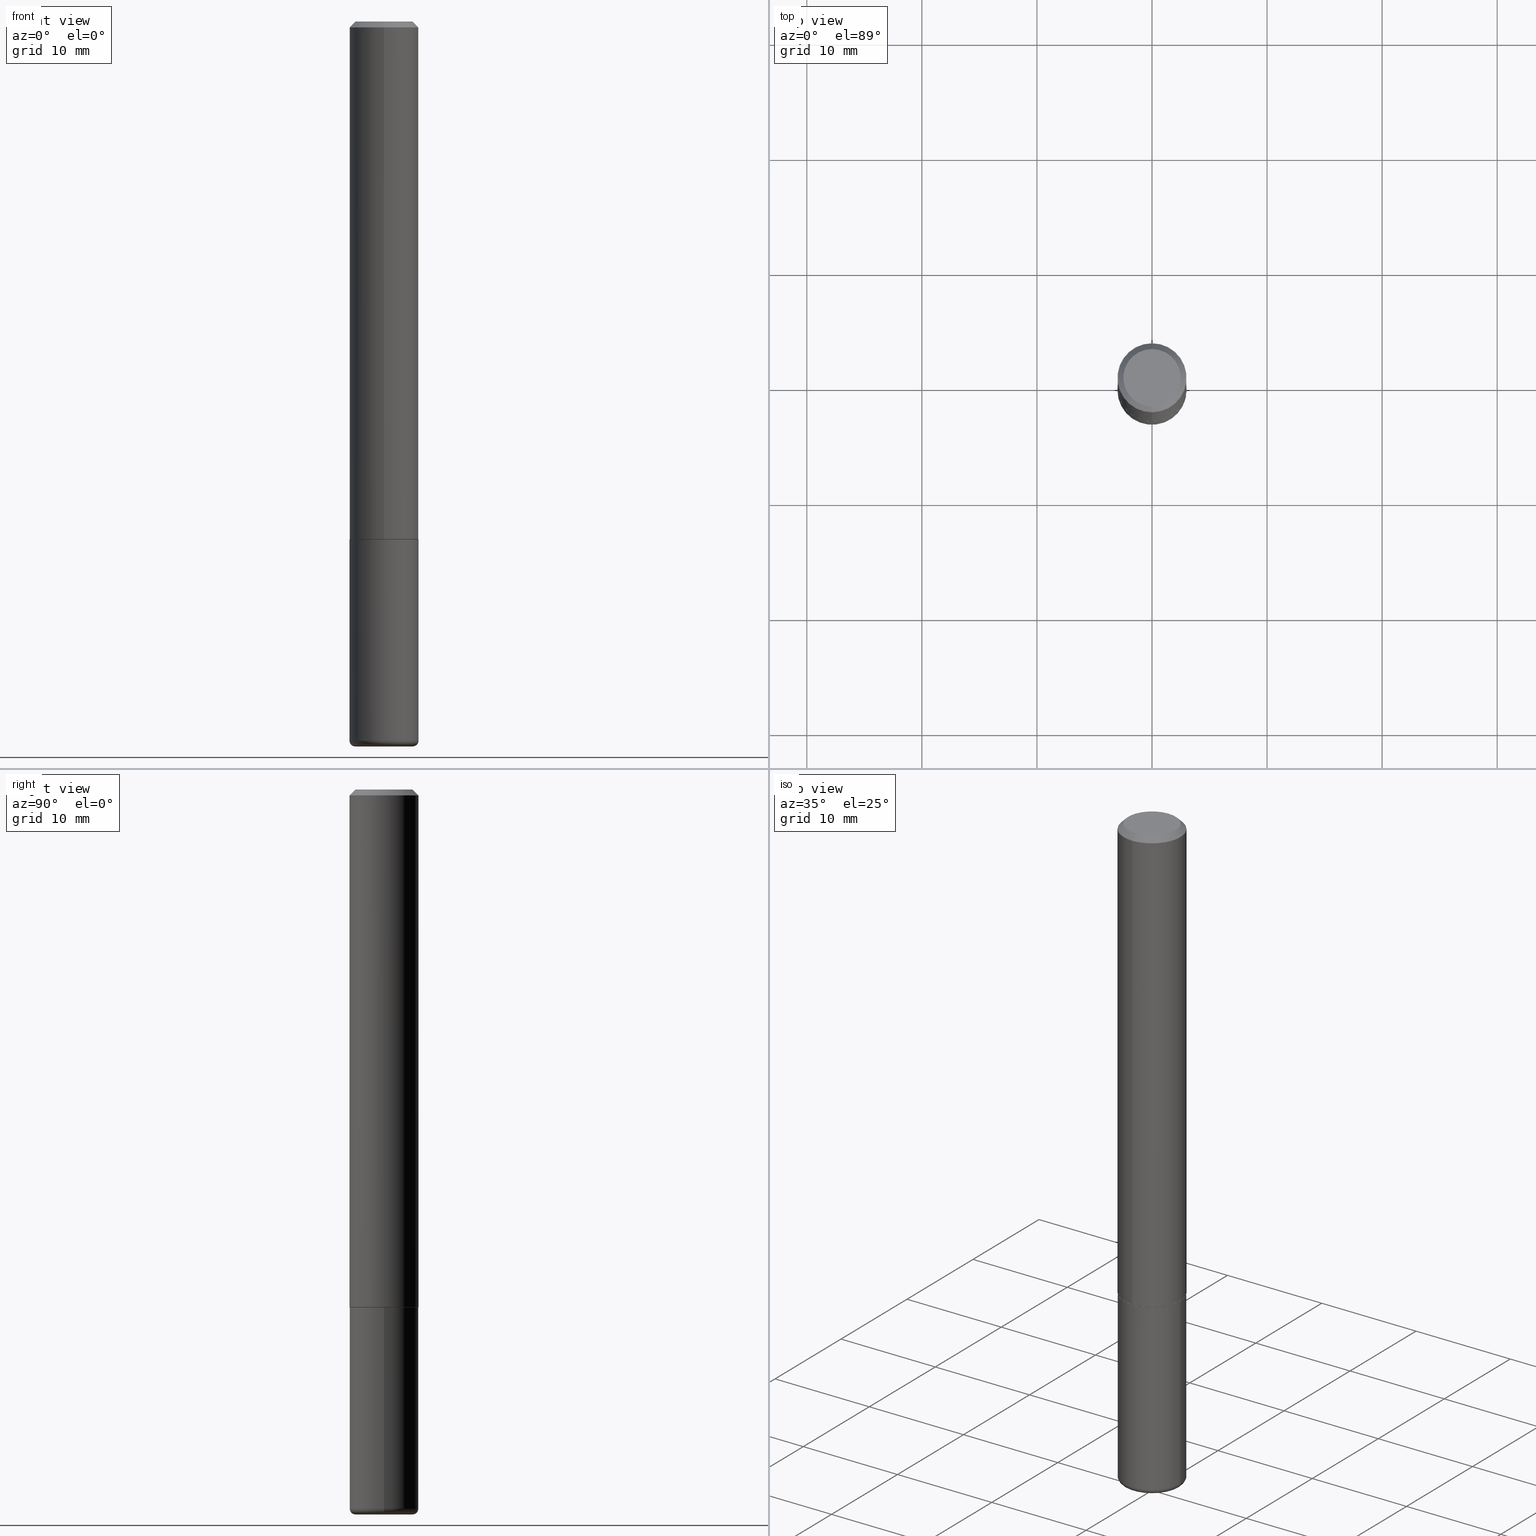
[diagram: canonical four-view strip — front | top / right | iso, engineering-drawing reading convention]
A machine part, canonical four-view strip (front | top / right | iso — engineering-drawing reading convention). The complete STEP part file that produces these views, byte-faithful:
ISO-10303-21;
HEADER;
FILE_DESCRIPTION (( 'STEP AP203' ),
    '1' );
FILE_NAME ('47486.STEP',
    '2024-03-06T02:24:34',
    ( '' ),
    ( '' ),
    'SwSTEP 2.0',
    'SolidWorks 2023',
    '' );
FILE_SCHEMA (( 'CONFIG_CONTROL_DESIGN' ));
ENDSEC;

DATA;
#1 = MANIFOLD_SOLID_BREP ( 'Body-Move/Copy2[1]', #125 ) ;
#3 = APPROVAL_DATE_TIME ( #34, #260 ) ;
#2 = APPROVAL ( #294, 'UNSPECIFIED' ) ;
#4 = CARTESIAN_POINT ( 'NONE',  ( 4.886477535132384121E-31, -6.989349762142808870E-17, -0.02000000000000004205 ) ) ;
#5 = FACE_OUTER_BOUND ( 'NONE', #79, .T. ) ;
#6 = CARTESIAN_POINT ( 'NONE',  ( -0.1180999999999999966, 8.391509709326782957E-16, -5.809262341591043784E-30 ) ) ;
#7 = EDGE_CURVE ( 'NONE', #156, #144, #296, .T. ) ;
#8 = CIRCLE ( 'NONE', #268, 0.01970000000000002999 ) ;
#9 = APPLICATION_CONTEXT ( 'configuration controlled 3d designs of mechanical parts and assemblies' ) ;
#10 = PERSON_AND_ORGANIZATION_ROLE ( 'classification_officer' ) ;
#11 = AXIS2_PLACEMENT_3D ( 'NONE', #191, #280, #414 ) ;
#12 = CARTESIAN_POINT ( 'NONE',  ( 0.000000000000000000, 0.000000000000000000, 0.000000000000000000 ) ) ;
#13 = ORIENTED_EDGE ( 'NONE', *, *, #327, .T. ) ;
#14 = CARTESIAN_POINT ( 'NONE',  ( -8.102248135368172434E-16, -0.1181000000000000660, -0.01999999999999962919 ) ) ;
#15 = EDGE_CURVE ( 'NONE', #184, #54, #219, .T. ) ;
#16 = ORIENTED_EDGE ( 'NONE', *, *, #96, .T. ) ;
#17 = CARTESIAN_POINT ( 'NONE',  ( -8.102248135368172434E-16, -0.1181000000000000660, -0.01999999999999962919 ) ) ;
#18 = AXIS2_PLACEMENT_3D ( 'NONE', #12, #223, #247 ) ;
#19 = AXIS2_PLACEMENT_3D ( 'NONE', #44, #308, #175 ) ;
#20 = EDGE_LOOP ( 'NONE', ( #150, #159 ) ) ;
#21 = DIRECTION ( 'NONE',  ( -6.982962677686265922E-15, -1.000000000000000000, 4.626330217890360659E-15 ) ) ;
#22 = CARTESIAN_POINT ( 'NONE',  ( -0.1181000000000000105, -7.751988011424766742E-15, -2.460600000000000342 ) ) ;
#23 = FACE_OUTER_BOUND ( 'NONE', #148, .T. ) ;
#24 = ORIENTED_EDGE ( 'NONE', *, *, #374, .T. ) ;
#25 = APPLICATION_PROTOCOL_DEFINITION ( 'international standard', 'config_control_design', 1994, #116 ) ;
#26 = LINE ( 'NONE', #212, #98 ) ;
#27 = CONICAL_SURFACE ( 'NONE', #180, 0.1180999999999999966, 0.7853981633974469467 ) ;
#28 = CIRCLE ( 'NONE', #396, 0.1170999999999999958 ) ;
#29 = ORIENTED_EDGE ( 'NONE', *, *, #322, .F. ) ;
#30 = DIRECTION ( 'NONE',  ( -2.443238767566187138E-29, 3.494674881071397310E-15, 1.000000000000000000 ) ) ;
#31 = PERSON_AND_ORGANIZATION_ROLE ( 'design_owner' ) ;
#32 = CARTESIAN_POINT ( 'NONE',  ( 0.1180999999999999966, -8.246878922347480654E-16, 5.758764772215000440E-30 ) ) ;
#33 = AXIS2_PLACEMENT_3D ( 'NONE', #172, #149, #377 ) ;
#34 = DATE_AND_TIME ( #283, #246 ) ;
#35 = CARTESIAN_POINT ( 'NONE',  ( -8.246878922347488542E-16, -0.1181000000000001215, 4.127211034545323724E-16 ) ) ;
#36 = EDGE_CURVE ( 'NONE', #184, #156, #26, .T. ) ;
#37 = CARTESIAN_POINT ( 'NONE',  ( 6.850286386810209760E-16, 0.09809999999999975684, -2.124813316387448711E-16 ) ) ;
#38 = APPROVAL_DATE_TIME ( #225, #2 ) ;
#39 = ADVANCED_FACE ( 'NONE', ( #309 ), #291, .T. ) ;
#40 = AXIS2_PLACEMENT_3D ( 'NONE', #350, #314, #58 ) ;
#41 = EDGE_CURVE ( 'NONE', #156, #371, #244, .T. ) ;
#42 = CARTESIAN_POINT ( 'NONE',  ( 8.391509709327014685E-16, 0.1180999999999940708, -1.770600000000000840 ) ) ;
#43 = ORIENTED_EDGE ( 'NONE', *, *, #129, .F. ) ;
#45 = EDGE_CURVE ( 'NONE', #83, #263, #351, .T. ) ;
#44 = CARTESIAN_POINT ( 'NONE',  ( 4.332392537037588763E-29, -6.185508339894517569E-15, -1.771600000000000286 ) ) ;
#46 = VECTOR ( 'NONE', #402, 39.37007874015748143 ) ;
#47 = DIRECTION ( 'NONE',  ( -6.982962677686265922E-15, -1.000000000000000000, 3.494674881071397705E-15 ) ) ;
#48 = VERTEX_POINT ( 'NONE', #22 ) ;
#49 = DIRECTION ( 'NONE',  ( -6.982962677686265922E-15, -1.000000000000000000, 3.505890868245046092E-15 ) ) ;
#50 = FACE_OUTER_BOUND ( 'NONE', #270, .T. ) ;
#51 = AXIS2_PLACEMENT_3D ( 'NONE', #254, #199, #103 ) ;
#52 = AXIS2_PLACEMENT_3D ( 'NONE', #107, #232, #21 ) ;
#53 = ORIENTED_EDGE ( 'NONE', *, *, #401, .F. ) ;
#54 = VERTEX_POINT ( 'NONE', #95 ) ;
#55 = CALENDAR_DATE ( 2024, 5, 3 ) ;
#56 = EDGE_LOOP ( 'NONE', ( #113, #123, #173, #406 ) ) ;
#57 = EDGE_CURVE ( 'NONE', #208, #189, #262, .T. ) ;
#58 = DIRECTION ( 'NONE',  ( -6.982962677686265922E-15, -1.000000000000000000, 2.332918867347791121E-15 ) ) ;
#59 = VECTOR ( 'NONE', #65, 39.37007874015748143 ) ;
#60 = DATE_AND_TIME ( #55, #164 ) ;
#61 = CC_DESIGN_PERSON_AND_ORGANIZATION_ASSIGNMENT ( #384, #153, ( #329 ) ) ;
#62 = DIRECTION ( 'NONE',  ( -2.445468806185136597E-29, 3.491481338843145583E-15, 1.000000000000000000 ) ) ;
#63 = CARTESIAN_POINT ( 'NONE',  ( 0.09840000000000000135, -9.278262509841773199E-15, -2.460600000000000342 ) ) ;
#64 = DIRECTION ( 'NONE',  ( 6.982962677686265922E-15, 1.000000000000000000, -3.505890868245046092E-15 ) ) ;
#65 = DIRECTION ( 'NONE',  ( -2.445468806185136877E-29, 3.491481338843145188E-15, 1.000000000000000000 ) ) ;
#66 = DATE_AND_TIME ( #100, #127 ) ;
#67 = AXIS2_PLACEMENT_3D ( 'NONE', #375, #310, #214 ) ;
#68 = CC_DESIGN_APPROVAL ( #260, ( #329 ) ) ;
#69 = FACE_OUTER_BOUND ( 'NONE', #152, .T. ) ;
#70 = ORIENTED_EDGE ( 'NONE', *, *, #171, .F. ) ;
#71 = FACE_OUTER_BOUND ( 'NONE', #186, .T. ) ;
#72 = ADVANCED_FACE ( 'NONE', ( #71 ), #249, .T. ) ;
#73 = AXIS2_PLACEMENT_3D ( 'NONE', #77, #151, #373 ) ;
#74 = CARTESIAN_POINT ( 'NONE',  ( 0.1181000000000000105, -9.415826874592192413E-15, -2.460600000000000342 ) ) ;
#75 = AXIS2_PLACEMENT_3D ( 'NONE', #157, #190, #320 ) ;
#76 = CARTESIAN_POINT ( 'NONE',  ( 4.328441800620257960E-29, -6.191166019306087880E-15, -1.771600000000000286 ) ) ;
#77 = CARTESIAN_POINT ( 'NONE',  ( 6.065496279980994755E-29, -8.659921164732655335E-15, -2.480300000000000171 ) ) ;
#78 = ADVANCED_FACE ( 'NONE', ( #397 ), #132, .T. ) ;
#79 = EDGE_LOOP ( 'NONE', ( #279, #29, #378, #202 ) ) ;
#80 = CARTESIAN_POINT ( 'NONE',  ( 0.1180999999999999966, -7.010196232129265043E-15, -1.771600000000000286 ) ) ;
#81 = AXIS2_PLACEMENT_3D ( 'NONE', #274, #114, #399 ) ;
#82 = AXIS2_PLACEMENT_3D ( 'NONE', #332, #181, #47 ) ;
#83 = VERTEX_POINT ( 'NONE', #126 ) ;
#84 = CALENDAR_DATE ( 2024, 5, 3 ) ;
#85 = VERTEX_POINT ( 'NONE', #370 ) ;
#86 = ADVANCED_FACE ( 'NONE', ( #97 ), #390, .T. ) ;
#87 = PERSON_AND_ORGANIZATION_ROLE ( 'design_supplier' ) ;
#88 = ORIENTED_EDGE ( 'NONE', *, *, #112, .F. ) ;
#89 = PERSON_AND_ORGANIZATION_ROLE ( 'creator' ) ;
#90 = CIRCLE ( 'NONE', #305, 0.1180999999999999966 ) ;
#91 = CARTESIAN_POINT ( 'NONE',  ( 8.391509709326790846E-16, 0.1181000000000001215, -4.127211034545323724E-16 ) ) ;
#92 = AXIS2_PLACEMENT_3D ( 'NONE', #405, #264, #111 ) ;
#93 = CARTESIAN_POINT ( 'NONE',  ( -8.177049295570184665E-16, -0.1171000000000061991, -1.771600000000000064 ) ) ;
#94 = DIRECTION ( 'NONE',  ( 4.937700262164540942E-15, 0.7071067811865441310, -0.7071067811865509034 ) ) ;
#95 = CARTESIAN_POINT ( 'NONE',  ( -8.177049295570184665E-16, -0.1171000000000061991, -1.771600000000000064 ) ) ;
#96 = EDGE_CURVE ( 'NONE', #275, #371, #145, .T. ) ;
#97 = FACE_OUTER_BOUND ( 'NONE', #56, .T. ) ;
#98 = VECTOR ( 'NONE', #238, 39.37007874015748143 ) ;
#99 =( GEOMETRIC_REPRESENTATION_CONTEXT ( 3 ) GLOBAL_UNCERTAINTY_ASSIGNED_CONTEXT ( ( #194 ) ) GLOBAL_UNIT_ASSIGNED_CONTEXT ( ( #281, #278, #316 ) ) REPRESENTATION_CONTEXT ( 'NONE', 'WORKASPACE' ) );
#100 = CALENDAR_DATE ( 2024, 5, 3 ) ;
#101 = EDGE_CURVE ( 'NONE', #54, #144, #139, .T. ) ;
#102 = VECTOR ( 'NONE', #30, 39.37007874015748143 ) ;
#103 = DIRECTION ( 'NONE',  ( -1.000000000000000000, 6.982962677686265922E-15, -4.876176775795935793E-29 ) ) ;
#104 = VERTEX_POINT ( 'NONE', #288 ) ;
#105 = DIRECTION ( 'NONE',  ( -4.937700262164969294E-15, -0.7071067811866054154, 0.7071067811864896191 ) ) ;
#106 = ORIENTED_EDGE ( 'NONE', *, *, #360, .T. ) ;
#107 = CARTESIAN_POINT ( 'NONE',  ( 4.325998561852691348E-29, -6.187671344425017014E-15, -1.770600000000000174 ) ) ;
#108 = AXIS2_PLACEMENT_3D ( 'NONE', #182, #413, #216 ) ;
#109 = DIRECTION ( 'NONE',  ( 1.000000000000000000, -6.982962677686273021E-15, 0.000000000000000000 ) ) ;
#110 = PRODUCT_DEFINITION_FORMATION_WITH_SPECIFIED_SOURCE ( 'ANY', '', #158, .NOT_KNOWN. ) ;
#112 = EDGE_CURVE ( 'NONE', #83, #208, #284, .T. ) ;
#111 = DIRECTION ( 'NONE',  ( 1.000000000000000000, -6.982962677686265133E-15, 0.000000000000000000 ) ) ;
#113 = ORIENTED_EDGE ( 'NONE', *, *, #41, .F. ) ;
#114 = DIRECTION ( 'NONE',  ( -2.443238767566187138E-29, 3.494674881071396916E-15, 1.000000000000000000 ) ) ;
#115 = ORIENTED_EDGE ( 'NONE', *, *, #134, .F. ) ;
#116 = APPLICATION_CONTEXT ( 'configuration controlled 3d designs of mechanical parts and assemblies' ) ;
#117 = CARTESIAN_POINT ( 'NONE',  ( -7.416198335591014190E-16, -0.09809999999999975684, 6.035201542218197439E-16 ) ) ;
#118 = EDGE_LOOP ( 'NONE', ( #227, #301, #53, #409 ) ) ;
#119 = ADVANCED_FACE ( 'NONE', ( #319 ), #326, .F. ) ;
#120 = COORDINATED_UNIVERSAL_TIME_OFFSET ( 5, 0, .BEHIND. ) ;
#121 = ORIENTED_EDGE ( 'NONE', *, *, #401, .T. ) ;
#122 = APPROVAL_ROLE ( '' ) ;
#123 = ORIENTED_EDGE ( 'NONE', *, *, #7, .T. ) ;
#124 = DIRECTION ( 'NONE',  ( 1.000000000000000000, -6.982962677686270655E-15, 4.883557194083114583E-29 ) ) ;
#125 = CLOSED_SHELL ( 'NONE', ( #140, #339, #136, #78, #415, #72 ) ) ;
#126 = CARTESIAN_POINT ( 'NONE',  ( 0.09840000000000000135, -9.347044692216982806E-15, -2.480300000000000171 ) ) ;
#127 = LOCAL_TIME ( 21, 24, 34.00000000000000000, #135 ) ;
#128 = DATE_TIME_ROLE ( 'creation_date' ) ;
#129 = EDGE_CURVE ( 'NONE', #144, #275, #230, .T. ) ;
#130 = DIRECTION ( 'NONE',  ( -2.443238767566187138E-29, 3.494674881071396916E-15, 1.000000000000000000 ) ) ;
#131 = CARTESIAN_POINT ( 'NONE',  ( 6.017320544499148018E-29, -8.591138982357444151E-15, -2.460600000000000342 ) ) ;
#132 = CYLINDRICAL_SURFACE ( 'NONE', #18, 0.1180999999999999966 ) ;
#133 = CIRCLE ( 'NONE', #403, 0.09809999999999975684 ) ;
#134 = EDGE_CURVE ( 'NONE', #48, #104, #388, .T. ) ;
#135 = COORDINATED_UNIVERSAL_TIME_OFFSET ( 5, 0, .BEHIND. ) ;
#136 = ADVANCED_FACE ( 'NONE', ( #282 ), #368, .F. ) ;
#137 = CIRCLE ( 'NONE', #82, 0.09809999999999975684 ) ;
#138 = PERSON_AND_ORGANIZATION ( #311, #334 ) ;
#139 = LINE ( 'NONE', #93, #333 ) ;
#140 = ADVANCED_FACE ( 'NONE', ( #391 ), #418, .T. ) ;
#141 = ORIENTED_EDGE ( 'NONE', *, *, #363, .F. ) ;
#142 = DIRECTION ( 'NONE',  ( -6.982962677686265922E-15, -1.000000000000000000, 2.332918867347791121E-15 ) ) ;
#143 = DIRECTION ( 'NONE',  ( 1.000000000000000000, -6.982962677686270655E-15, 4.883557194083114583E-29 ) ) ;
#144 = VERTEX_POINT ( 'NONE', #228 ) ;
#145 = CIRCLE ( 'NONE', #197, 0.1180999999999999966 ) ;
#146 = CIRCLE ( 'NONE', #19, 0.1180999999999999966 ) ;
#147 = CYLINDRICAL_SURFACE ( 'NONE', #67, 0.1181000000000001215 ) ;
#148 = EDGE_LOOP ( 'NONE', ( #318, #404, #231, #210 ) ) ;
#149 = DIRECTION ( 'NONE',  ( 2.443238767566187138E-29, -3.494674881071396916E-15, -1.000000000000000000 ) ) ;
#150 = ORIENTED_EDGE ( 'NONE', *, *, #322, .T. ) ;
#151 = DIRECTION ( 'NONE',  ( -2.445468806185136597E-29, 3.491481338843145583E-15, 1.000000000000000000 ) ) ;
#152 = EDGE_LOOP ( 'NONE', ( #170, #106, #16, #217 ) ) ;
#153 = PERSON_AND_ORGANIZATION_ROLE ( 'creator' ) ;
#154 = APPROVAL_PERSON_ORGANIZATION ( #248, #317, #313 ) ;
#155 = ADVANCED_FACE ( 'NONE', ( #5 ), #27, .T. ) ;
#156 = VERTEX_POINT ( 'NONE', #42 ) ;
#157 = CARTESIAN_POINT ( 'NONE',  ( 0.000000000000000000, 0.000000000000000000, 0.000000000000000000 ) ) ;
#158 = PRODUCT ( '47486', '47486', '', ( #250 ) ) ;
#159 = ORIENTED_EDGE ( 'NONE', *, *, #242, .T. ) ;
#160 = APPROVAL_STATUS ( 'not_yet_approved' ) ;
#161 = DIRECTION ( 'NONE',  ( -2.445468806185136877E-29, 3.491481338843145188E-15, 1.000000000000000000 ) ) ;
#162 = APPROVAL_STATUS ( 'not_yet_approved' ) ;
#163 = DIRECTION ( 'NONE',  ( -6.982962677686265922E-15, -1.000000000000000000, 3.494674881071396522E-15 ) ) ;
#164 = LOCAL_TIME ( 21, 24, 34.00000000000000000, #120 ) ;
#165 = DIRECTION ( 'NONE',  ( 2.438088387897960049E-29, -3.491481338843145188E-15, -1.000000000000000000 ) ) ;
#166 = DIRECTION ( 'NONE',  ( 2.443238767566186578E-29, -3.494674881071397310E-15, -1.000000000000000000 ) ) ;
#167 = AXIS2_PLACEMENT_3D ( 'NONE', #63, #222, #221 ) ;
#168 = SECURITY_CLASSIFICATION ( '', '', #349 ) ;
#169 = CC_DESIGN_APPROVAL ( #317, ( #110 ) ) ;
#170 = ORIENTED_EDGE ( 'NONE', *, *, #242, .F. ) ;
#171 = EDGE_CURVE ( 'NONE', #48, #208, #365, .T. ) ;
#172 = CARTESIAN_POINT ( 'NONE',  ( 4.886477535132384121E-31, -6.989349762142808870E-17, -0.02000000000000004205 ) ) ;
#173 = ORIENTED_EDGE ( 'NONE', *, *, #129, .T. ) ;
#174 = APPROVAL_PERSON_ORGANIZATION ( #138, #2, #252 ) ;
#175 = DIRECTION ( 'NONE',  ( 1.000000000000000000, -6.982962677686265133E-15, 0.000000000000000000 ) ) ;
#176 = DIRECTION ( 'NONE',  ( -2.443238767566187138E-29, 3.494674881071396916E-15, 1.000000000000000000 ) ) ;
#177 = ADVANCED_FACE ( 'NONE', ( #69 ), #213, .T. ) ;
#178 = ORIENTED_EDGE ( 'NONE', *, *, #41, .T. ) ;
#179 = CARTESIAN_POINT ( 'NONE',  ( 4.328441800620257960E-29, -6.191166019306087880E-15, -1.771600000000000286 ) ) ;
#180 = AXIS2_PLACEMENT_3D ( 'NONE', #331, #395, #64 ) ;
#181 = DIRECTION ( 'NONE',  ( -2.443238767566187138E-29, 3.494674881071396916E-15, 1.000000000000000000 ) ) ;
#182 = CARTESIAN_POINT ( 'NONE',  ( 4.325998561852691348E-29, -6.187671344425017014E-15, -1.770600000000000174 ) ) ;
#183 = PLANE ( 'NONE',  #324 ) ;
#184 = VERTEX_POINT ( 'NONE', #235 ) ;
#185 = APPROVAL_DATE_TIME ( #60, #317 ) ;
#186 = EDGE_LOOP ( 'NONE', ( #330, #411 ) ) ;
#187 = LENGTH_MEASURE_WITH_UNIT ( LENGTH_MEASURE( 0.02539999999999999897 ), #358 );
#188 = VECTOR ( 'NONE', #355, 39.37007874015748143 ) ;
#189 = VERTEX_POINT ( 'NONE', #80 ) ;
#190 = DIRECTION ( 'NONE',  ( 0.000000000000000000, 0.000000000000000000, 1.000000000000000000 ) ) ;
#191 = CARTESIAN_POINT ( 'NONE',  ( 4.328441800620257960E-29, -6.191166019306087880E-15, -1.771600000000000286 ) ) ;
#192 = ADVANCED_FACE ( 'NONE', ( #372 ), #147, .T. ) ;
#193 = DIRECTION ( 'NONE',  ( 1.000000000000000000, -6.982962677686266711E-15, 4.876176775795936353E-29 ) ) ;
#194 = UNCERTAINTY_MEASURE_WITH_UNIT (LENGTH_MEASURE( 1.000000000000000082E-05 ), #281, 'distance_accuracy_value', 'NONE');
#195 = CC_DESIGN_PERSON_AND_ORGANIZATION_ASSIGNMENT ( #382, #89, ( #110 ) ) ;
#196 = APPLICATION_PROTOCOL_DEFINITION ( 'international standard', 'config_control_design', 1994, #9 ) ;
#197 = AXIS2_PLACEMENT_3D ( 'NONE', #4, #130, #201 ) ;
#198 = CARTESIAN_POINT ( 'NONE',  ( 6.065496279980994755E-29, -8.659921164732655335E-15, -2.480300000000000171 ) ) ;
#199 = DIRECTION ( 'NONE',  ( 2.438088387897960049E-29, -3.491481338843145188E-15, -1.000000000000000000 ) ) ;
#200 = EDGE_CURVE ( 'NONE', #263, #83, #394, .T. ) ;
#201 = DIRECTION ( 'NONE',  ( -6.982962677686265922E-15, -1.000000000000000000, 3.505890868245046092E-15 ) ) ;
#202 = ORIENTED_EDGE ( 'NONE', *, *, #224, .T. ) ;
#203 = CC_DESIGN_DATE_AND_TIME_ASSIGNMENT ( #66, #257, ( #168 ) ) ;
#204 = DIRECTION ( 'NONE',  ( -2.443238767566186578E-29, 3.494674881071397310E-15, 1.000000000000000000 ) ) ;
#205 = ORIENTED_EDGE ( 'NONE', *, *, #300, .T. ) ;
#206 = CIRCLE ( 'NONE', #52, 0.1181000000000002326 ) ;
#207 = CARTESIAN_POINT ( 'NONE',  ( -0.09840000000000000135, -7.891964930369506840E-15, -2.460600000000000342 ) ) ;
#208 = VERTEX_POINT ( 'NONE', #74 ) ;
#209 = DIRECTION ( 'NONE',  ( -6.982962677686265922E-15, -1.000000000000000000, 3.494674881071397310E-15 ) ) ;
#210 = ORIENTED_EDGE ( 'NONE', *, *, #7, .F. ) ;
#211 = DIRECTION ( 'NONE',  ( -1.000000000000000000, 7.105427357601014480E-15, 0.000000000000000000 ) ) ;
#212 = CARTESIAN_POINT ( 'NONE',  ( 8.320455435751204777E-16, 0.1170999999999937924, -1.771600000000000508 ) ) ;
#213 = CONICAL_SURFACE ( 'NONE', #33, 0.1180999999999999966, 0.7853981633974469467 ) ;
#214 = DIRECTION ( 'NONE',  ( -6.982962677686265922E-15, -1.000000000000000000, 3.494674881071396522E-15 ) ) ;
#215 = ORIENTED_EDGE ( 'NONE', *, *, #272, .F. ) ;
#216 = DIRECTION ( 'NONE',  ( -6.982962677686265922E-15, -1.000000000000000000, 4.626330217890360659E-15 ) ) ;
#217 = ORIENTED_EDGE ( 'NONE', *, *, #412, .F. ) ;
#218 = COORDINATED_UNIVERSAL_TIME_OFFSET ( 5, 0, .BEHIND. ) ;
#219 = CIRCLE ( 'NONE', #40, 0.1170999999999999958 ) ;
#220 = PERSON_AND_ORGANIZATION ( #311, #334 ) ;
#221 = DIRECTION ( 'NONE',  ( 1.000000000000000000, -6.982962677686218590E-15, 0.000000000000000000 ) ) ;
#222 = DIRECTION ( 'NONE',  ( -6.982962677686266711E-15, -1.000000000000000000, 3.491481338843145583E-15 ) ) ;
#223 = DIRECTION ( 'NONE',  ( -2.445468806185136597E-29, 3.491481338843145583E-15, 1.000000000000000000 ) ) ;
#224 = EDGE_CURVE ( 'NONE', #371, #275, #315, .T. ) ;
#225 = DATE_AND_TIME ( #258, #255 ) ;
#226 = CIRCLE ( 'NONE', #92, 0.1180999999999999966 ) ;
#227 = ORIENTED_EDGE ( 'NONE', *, *, #363, .T. ) ;
#228 = CARTESIAN_POINT ( 'NONE',  ( -8.246878922347063544E-16, -0.1181000000000064221, -1.770599999999999730 ) ) ;
#229 = ORIENTED_EDGE ( 'NONE', *, *, #200, .T. ) ;
#230 = LINE ( 'NONE', #35, #102 ) ;
#231 = ORIENTED_EDGE ( 'NONE', *, *, #101, .T. ) ;
#232 = DIRECTION ( 'NONE',  ( -2.443238767566187138E-29, 3.494674881071396916E-15, 1.000000000000000000 ) ) ;
#233 = CONICAL_SURFACE ( 'NONE', #81, 0.1170999999999999958, 0.7853981633975336552 ) ;
#234 = CC_DESIGN_PERSON_AND_ORGANIZATION_ASSIGNMENT ( #354, #87, ( #110 ) ) ;
#235 = CARTESIAN_POINT ( 'NONE',  ( 8.355982572539216720E-16, 0.1170999999999937924, -1.771600000000000508 ) ) ;
#236 = DIRECTION ( 'NONE',  ( 1.000000000000000000, -6.982962677686261977E-15, 0.000000000000000000 ) ) ;
#237 = CARTESIAN_POINT ( 'NONE',  ( -6.369341406389364514E-45, 9.110357005365375257E-31, 2.606925483887165818E-16 ) ) ;
#238 = DIRECTION ( 'NONE',  ( 5.024295867788490741E-15, 0.7071067811866103003, 0.7071067811864847341 ) ) ;
#239 = DIRECTION ( 'NONE',  ( -6.982962677686265922E-15, -1.000000000000000000, 3.494674881071397705E-15 ) ) ;
#240 = ORIENTED_EDGE ( 'NONE', *, *, #96, .F. ) ;
#241 = EDGE_LOOP ( 'NONE', ( #376, #398, #267, #88 ) ) ;
#242 = EDGE_CURVE ( 'NONE', #293, #85, #133, .T. ) ;
#243 = CARTESIAN_POINT ( 'NONE',  ( 6.017320544499148018E-29, -8.591138982357444151E-15, -2.460600000000000342 ) ) ;
#244 = LINE ( 'NONE', #91, #188 ) ;
#245 = AXIS2_PLACEMENT_3D ( 'NONE', #361, #321, #193 ) ;
#246 = LOCAL_TIME ( 21, 24, 34.00000000000000000, #218 ) ;
#247 = DIRECTION ( 'NONE',  ( 1.000000000000000000, -6.982962677686266711E-15, 4.876176775795936353E-29 ) ) ;
#248 = PERSON_AND_ORGANIZATION ( #311, #334 ) ;
#249 = PLANE ( 'NONE',  #392 ) ;
#250 = MECHANICAL_CONTEXT ( 'NONE', #9, 'mechanical' ) ;
#251 = DIRECTION ( 'NONE',  ( 1.000000000000000000, -6.982962677686273021E-15, 0.000000000000000000 ) ) ;
#252 = APPROVAL_ROLE ( '' ) ;
#253 = AXIS2_PLACEMENT_3D ( 'NONE', #131, #290, #251 ) ;
#254 = CARTESIAN_POINT ( 'NONE',  ( 4.332392537037588763E-29, -6.185508339894517569E-15, -1.771600000000000286 ) ) ;
#255 = LOCAL_TIME ( 21, 24, 34.00000000000000000, #367 ) ;
#256 = ADVANCED_BREP_SHAPE_REPRESENTATION ( '47486', ( #1, #285, #75 ), #99 ) ;
#257 = DATE_TIME_ROLE ( 'classification_date' ) ;
#258 = CALENDAR_DATE ( 2024, 5, 3 ) ;
#259 = ADVANCED_FACE ( 'NONE', ( #23 ), #233, .T. ) ;
#260 = APPROVAL ( #162, 'UNSPECIFIED' ) ;
#261 = AXIS2_PLACEMENT_3D ( 'NONE', #345, #176, #49 ) ;
#262 = LINE ( 'NONE', #32, #59 ) ;
#263 = VERTEX_POINT ( 'NONE', #340 ) ;
#264 = DIRECTION ( 'NONE',  ( -2.445468806185136597E-29, 3.491481338843145583E-15, 1.000000000000000000 ) ) ;
#265 = ORIENTED_EDGE ( 'NONE', *, *, #171, .T. ) ;
#266 = FACE_OUTER_BOUND ( 'NONE', #241, .T. ) ;
#267 = ORIENTED_EDGE ( 'NONE', *, *, #300, .F. ) ;
#268 = AXIS2_PLACEMENT_3D ( 'NONE', #207, #302, #211 ) ;
#269 = DIRECTION ( 'NONE',  ( -2.443238767566187138E-29, 3.494674881071396916E-15, 1.000000000000000000 ) ) ;
#270 = EDGE_LOOP ( 'NONE', ( #141, #381 ) ) ;
#272 = EDGE_CURVE ( 'NONE', #263, #48, #8, .T. ) ;
#271 = CARTESIAN_POINT ( 'NONE',  ( 6.017320544499148018E-29, -8.591138982357444151E-15, -2.460600000000000342 ) ) ;
#273 = CARTESIAN_POINT ( 'NONE',  ( 6.065496279980994755E-29, -8.659921164732655335E-15, -2.480300000000000171 ) ) ;
#274 = CARTESIAN_POINT ( 'NONE',  ( 4.328441800620257960E-29, -6.191166019306087880E-15, -1.771600000000000286 ) ) ;
#275 = VERTEX_POINT ( 'NONE', #17 ) ;
#276 = CLOSED_SHELL ( 'NONE', ( #39, #192, #177, #155, #86, #259, #307, #119 ) ) ;
#277 = VECTOR ( 'NONE', #94, 39.37007874015748143 ) ;
#278 =( NAMED_UNIT ( * ) PLANE_ANGLE_UNIT ( ) SI_UNIT ( $, .RADIAN. ) );
#279 = ORIENTED_EDGE ( 'NONE', *, *, #360, .F. ) ;
#280 = DIRECTION ( 'NONE',  ( -2.443238767566187138E-29, 3.494674881071396916E-15, 1.000000000000000000 ) ) ;
#281 =( CONVERSION_BASED_UNIT ( 'INCH', #187 ) LENGTH_UNIT ( ) NAMED_UNIT ( #417 ) );
#282 = FACE_OUTER_BOUND ( 'NONE', #335, .T. ) ;
#283 = CALENDAR_DATE ( 2024, 5, 3 ) ;
#284 = CIRCLE ( 'NONE', #167, 0.01970000000000002999 ) ;
#285 = MANIFOLD_SOLID_BREP ( 'Body-Move/Copy2[2]', #276 ) ;
#286 = APPROVAL_PERSON_ORGANIZATION ( #416, #260, #122 ) ;
#287 = DIRECTION ( 'NONE',  ( -2.445468806185136597E-29, 3.491481338843145583E-15, 1.000000000000000000 ) ) ;
#288 = CARTESIAN_POINT ( 'NONE',  ( -0.1180999999999999966, -6.549172690193302663E-15, -1.771600000000000286 ) ) ;
#289 = CC_DESIGN_PERSON_AND_ORGANIZATION_ASSIGNMENT ( #220, #31, ( #158 ) ) ;
#290 = DIRECTION ( 'NONE',  ( -2.445468806185136597E-29, 3.491481338843145583E-15, 1.000000000000000000 ) ) ;
#291 = CONICAL_SURFACE ( 'NONE', #11, 0.1170999999999999958, 0.7853981633975336552 ) ;
#292 = TOROIDAL_SURFACE ( 'NONE', #353, 0.09840000000000000135, 0.01970000000000002999 ) ;
#293 = VERTEX_POINT ( 'NONE', #117 ) ;
#294 = APPROVAL_STATUS ( 'not_yet_approved' ) ;
#295 = DIRECTION ( 'NONE',  ( -1.000000000000000000, 6.982962677686265922E-15, -4.876176775795935793E-29 ) ) ;
#296 = CIRCLE ( 'NONE', #108, 0.1181000000000002326 ) ;
#297 = CC_DESIGN_APPROVAL ( #2, ( #168 ) ) ;
#298 = EDGE_LOOP ( 'NONE', ( #205, #303, #369, #312 ) ) ;
#299 = DIRECTION ( 'NONE',  ( -2.445468806185136597E-29, 3.491481338843145583E-15, 1.000000000000000000 ) ) ;
#300 = EDGE_CURVE ( 'NONE', #208, #48, #90, .T. ) ;
#301 = ORIENTED_EDGE ( 'NONE', *, *, #36, .T. ) ;
#302 = DIRECTION ( 'NONE',  ( 7.105427357601001859E-15, 1.000000000000000000, -3.491481338843145583E-15 ) ) ;
#303 = ORIENTED_EDGE ( 'NONE', *, *, #134, .T. ) ;
#304 = CARTESIAN_POINT ( 'NONE',  ( 8.246878922347484598E-16, 0.1180999999999999273, -0.02000000000000045838 ) ) ;
#305 = AXIS2_PLACEMENT_3D ( 'NONE', #380, #337, #109 ) ;
#306 = TOROIDAL_SURFACE ( 'NONE', #366, 0.09840000000000000135, 0.01970000000000002999 ) ;
#307 = ADVANCED_FACE ( 'NONE', ( #50 ), #183, .F. ) ;
#308 = DIRECTION ( 'NONE',  ( -2.445468806185136597E-29, 3.491481338843145583E-15, 1.000000000000000000 ) ) ;
#309 = FACE_OUTER_BOUND ( 'NONE', #118, .T. ) ;
#310 = DIRECTION ( 'NONE',  ( -2.443238767566187138E-29, 3.494674881071396916E-15, 1.000000000000000000 ) ) ;
#311 = PERSON ( 'UNSPECIFIED', 'UNSPECIFIED', 'UNSPECIFIED', ('UNSPECIFIED'), ('UNSPECIFIED'), ('UNSPECIFIED') ) ;
#312 = ORIENTED_EDGE ( 'NONE', *, *, #57, .F. ) ;
#313 = APPROVAL_ROLE ( '' ) ;
#314 = DIRECTION ( 'NONE',  ( -2.443238767566187138E-29, 3.494674881071396916E-15, 1.000000000000000000 ) ) ;
#315 = CIRCLE ( 'NONE', #261, 0.1180999999999999966 ) ;
#316 =( NAMED_UNIT ( * ) SI_UNIT ( $, .STERADIAN. ) SOLID_ANGLE_UNIT ( ) );
#317 = APPROVAL ( #160, 'UNSPECIFIED' ) ;
#318 = ORIENTED_EDGE ( 'NONE', *, *, #36, .F. ) ;
#319 = FACE_OUTER_BOUND ( 'NONE', #20, .T. ) ;
#320 = DIRECTION ( 'NONE',  ( 1.000000000000000000, 0.000000000000000000, 0.000000000000000000 ) ) ;
#321 = DIRECTION ( 'NONE',  ( -2.445468806185136597E-29, 3.491481338843145583E-15, 1.000000000000000000 ) ) ;
#322 = EDGE_CURVE ( 'NONE', #85, #293, #137, .T. ) ;
#323 = FACE_OUTER_BOUND ( 'NONE', #346, .T. ) ;
#324 = AXIS2_PLACEMENT_3D ( 'NONE', #76, #204, #209 ) ;
#325 = DIRECTION ( 'NONE',  ( 6.982962677686265922E-15, 1.000000000000000000, -3.494674881071397310E-15 ) ) ;
#326 = PLANE ( 'NONE',  #386 ) ;
#327 = EDGE_CURVE ( 'NONE', #104, #189, #146, .T. ) ;
#328 = AXIS2_PLACEMENT_3D ( 'NONE', #273, #62, #236 ) ;
#329 = PRODUCT_DEFINITION ( 'UNKNOWN', '', #110, #357 ) ;
#330 = ORIENTED_EDGE ( 'NONE', *, *, #45, .F. ) ;
#331 = CARTESIAN_POINT ( 'NONE',  ( 4.886477535132384121E-31, -6.989349762142808870E-17, -0.02000000000000004205 ) ) ;
#332 = CARTESIAN_POINT ( 'NONE',  ( -6.369341406389364514E-45, 9.110357005365375257E-31, 2.606925483887165818E-16 ) ) ;
#333 = VECTOR ( 'NONE', #105, 39.37007874015748143 ) ;
#334 = ORGANIZATION ( 'UNSPECIFIED', 'UNSPECIFIED', '' ) ;
#335 = EDGE_LOOP ( 'NONE', ( #24, #13 ) ) ;
#336 = CC_DESIGN_DATE_AND_TIME_ASSIGNMENT ( #347, #128, ( #329 ) ) ;
#337 = DIRECTION ( 'NONE',  ( -2.445468806185136597E-29, 3.491481338843145583E-15, 1.000000000000000000 ) ) ;
#338 = LINE ( 'NONE', #14, #46 ) ;
#339 = ADVANCED_FACE ( 'NONE', ( #266 ), #292, .T. ) ;
#340 = CARTESIAN_POINT ( 'NONE',  ( -0.09840000000000000135, -7.856367562084741595E-15, -2.480300000000000171 ) ) ;
#341 = CC_DESIGN_PERSON_AND_ORGANIZATION_ASSIGNMENT ( #362, #10, ( #168 ) ) ;
#342 = EDGE_LOOP ( 'NONE', ( #115, #265, #383, #348 ) ) ;
#343 = VECTOR ( 'NONE', #161, 39.37007874015748143 ) ;
#344 = LOCAL_TIME ( 21, 24, 34.00000000000000000, #387 ) ;
#345 = CARTESIAN_POINT ( 'NONE',  ( 4.886477535132384121E-31, -6.989349762142808870E-17, -0.02000000000000004205 ) ) ;
#346 = EDGE_LOOP ( 'NONE', ( #215, #229, #385, #70 ) ) ;
#347 = DATE_AND_TIME ( #84, #344 ) ;
#348 = ORIENTED_EDGE ( 'NONE', *, *, #327, .F. ) ;
#349 = SECURITY_CLASSIFICATION_LEVEL ( 'unclassified' ) ;
#350 = CARTESIAN_POINT ( 'NONE',  ( 4.328441800620257960E-29, -6.191166019306087880E-15, -1.771600000000000286 ) ) ;
#351 = CIRCLE ( 'NONE', #328, 0.09840000000000000135 ) ;
#352 = CC_DESIGN_SECURITY_CLASSIFICATION ( #168, ( #110 ) ) ;
#353 = AXIS2_PLACEMENT_3D ( 'NONE', #271, #299, #143 ) ;
#354 = PERSON_AND_ORGANIZATION ( #311, #334 ) ;
#355 = DIRECTION ( 'NONE',  ( -2.443238767566187138E-29, 3.494674881071397310E-15, 1.000000000000000000 ) ) ;
#356 = DIRECTION ( 'NONE',  ( -2.443238767566187138E-29, 3.494674881071396916E-15, 1.000000000000000000 ) ) ;
#357 = DESIGN_CONTEXT ( 'detailed design', #116, 'design' ) ;
#358 =( LENGTH_UNIT ( ) NAMED_UNIT ( * ) SI_UNIT ( $, .METRE. ) );
#359 = CARTESIAN_POINT ( 'NONE',  ( 0.000000000000000000, 0.000000000000000000, 0.000000000000000000 ) ) ;
#360 = EDGE_CURVE ( 'NONE', #293, #275, #338, .T. ) ;
#361 = CARTESIAN_POINT ( 'NONE',  ( 0.000000000000000000, 0.000000000000000000, 0.000000000000000000 ) ) ;
#362 = PERSON_AND_ORGANIZATION ( #311, #334 ) ;
#363 = EDGE_CURVE ( 'NONE', #54, #184, #28, .T. ) ;
#364 = PRODUCT_RELATED_PRODUCT_CATEGORY ( 'detail', '', ( #158 ) ) ;
#365 = CIRCLE ( 'NONE', #253, 0.1180999999999999966 ) ;
#366 = AXIS2_PLACEMENT_3D ( 'NONE', #243, #287, #124 ) ;
#367 = COORDINATED_UNIVERSAL_TIME_OFFSET ( 5, 0, .BEHIND. ) ;
#368 = PLANE ( 'NONE',  #51 ) ;
#369 = ORIENTED_EDGE ( 'NONE', *, *, #374, .F. ) ;
#370 = CARTESIAN_POINT ( 'NONE',  ( 7.548582654578847672E-16, 0.09809999999999975684, -8.213505744438662948E-17 ) ) ;
#371 = VERTEX_POINT ( 'NONE', #304 ) ;
#372 = FACE_OUTER_BOUND ( 'NONE', #400, .T. ) ;
#374 = EDGE_CURVE ( 'NONE', #189, #104, #226, .T. ) ;
#373 = DIRECTION ( 'NONE',  ( 1.000000000000000000, -6.982962677686261977E-15, 0.000000000000000000 ) ) ;
#375 = CARTESIAN_POINT ( 'NONE',  ( 0.000000000000000000, 0.000000000000000000, 0.000000000000000000 ) ) ;
#376 = ORIENTED_EDGE ( 'NONE', *, *, #45, .T. ) ;
#377 = DIRECTION ( 'NONE',  ( 6.982962677686265922E-15, 1.000000000000000000, -3.505890868245046092E-15 ) ) ;
#378 = ORIENTED_EDGE ( 'NONE', *, *, #412, .T. ) ;
#379 = AXIS2_PLACEMENT_3D ( 'NONE', #359, #356, #163 ) ;
#380 = CARTESIAN_POINT ( 'NONE',  ( 6.017320544499148018E-29, -8.591138982357444151E-15, -2.460600000000000342 ) ) ;
#381 = ORIENTED_EDGE ( 'NONE', *, *, #15, .F. ) ;
#382 = PERSON_AND_ORGANIZATION ( #311, #334 ) ;
#383 = ORIENTED_EDGE ( 'NONE', *, *, #57, .T. ) ;
#384 = PERSON_AND_ORGANIZATION ( #311, #334 ) ;
#385 = ORIENTED_EDGE ( 'NONE', *, *, #112, .T. ) ;
#386 = AXIS2_PLACEMENT_3D ( 'NONE', #37, #166, #325 ) ;
#387 = COORDINATED_UNIVERSAL_TIME_OFFSET ( 5, 0, .BEHIND. ) ;
#388 = LINE ( 'NONE', #6, #343 ) ;
#389 = CARTESIAN_POINT ( 'NONE',  ( 8.246878922347484598E-16, 0.1180999999999999273, -0.02000000000000045838 ) ) ;
#390 = CYLINDRICAL_SURFACE ( 'NONE', #379, 0.1181000000000001215 ) ;
#391 = FACE_OUTER_BOUND ( 'NONE', #298, .T. ) ;
#392 = AXIS2_PLACEMENT_3D ( 'NONE', #198, #165, #295 ) ;
#393 = SHAPE_DEFINITION_REPRESENTATION ( #407, #256 ) ;
#394 = CIRCLE ( 'NONE', #73, 0.09840000000000000135 ) ;
#395 = DIRECTION ( 'NONE',  ( 2.443238767566187138E-29, -3.494674881071396916E-15, -1.000000000000000000 ) ) ;
#396 = AXIS2_PLACEMENT_3D ( 'NONE', #179, #269, #142 ) ;
#397 = FACE_OUTER_BOUND ( 'NONE', #342, .T. ) ;
#398 = ORIENTED_EDGE ( 'NONE', *, *, #272, .T. ) ;
#399 = DIRECTION ( 'NONE',  ( -6.982962677686265922E-15, -1.000000000000000000, 2.332918867347791121E-15 ) ) ;
#400 = EDGE_LOOP ( 'NONE', ( #121, #178, #240, #43 ) ) ;
#401 = EDGE_CURVE ( 'NONE', #144, #156, #206, .T. ) ;
#402 = DIRECTION ( 'NONE',  ( -4.851104656540957175E-15, -0.7071067811865490160, -0.7071067811865460184 ) ) ;
#403 = AXIS2_PLACEMENT_3D ( 'NONE', #237, #410, #239 ) ;
#404 = ORIENTED_EDGE ( 'NONE', *, *, #15, .T. ) ;
#405 = CARTESIAN_POINT ( 'NONE',  ( 4.332392537037588763E-29, -6.185508339894517569E-15, -1.771600000000000286 ) ) ;
#406 = ORIENTED_EDGE ( 'NONE', *, *, #224, .F. ) ;
#407 = PRODUCT_DEFINITION_SHAPE ( 'NONE', 'NONE',  #329 ) ;
#408 = LINE ( 'NONE', #389, #277 ) ;
#409 = ORIENTED_EDGE ( 'NONE', *, *, #101, .F. ) ;
#410 = DIRECTION ( 'NONE',  ( -2.443238767566187138E-29, 3.494674881071396916E-15, 1.000000000000000000 ) ) ;
#411 = ORIENTED_EDGE ( 'NONE', *, *, #200, .F. ) ;
#412 = EDGE_CURVE ( 'NONE', #85, #371, #408, .T. ) ;
#413 = DIRECTION ( 'NONE',  ( -2.443238767566187138E-29, 3.494674881071396916E-15, 1.000000000000000000 ) ) ;
#414 = DIRECTION ( 'NONE',  ( -6.982962677686265922E-15, -1.000000000000000000, 2.332918867347791121E-15 ) ) ;
#415 = ADVANCED_FACE ( 'NONE', ( #323 ), #306, .T. ) ;
#416 = PERSON_AND_ORGANIZATION ( #311, #334 ) ;
#417 = DIMENSIONAL_EXPONENTS ( 1.000000000000000000, 0.000000000000000000, 0.000000000000000000, 0.000000000000000000, 0.000000000000000000, 0.000000000000000000, 0.000000000000000000 ) ;
#418 = CYLINDRICAL_SURFACE ( 'NONE', #245, 0.1180999999999999966 ) ;
ENDSEC;
END-ISO-10303-21;
